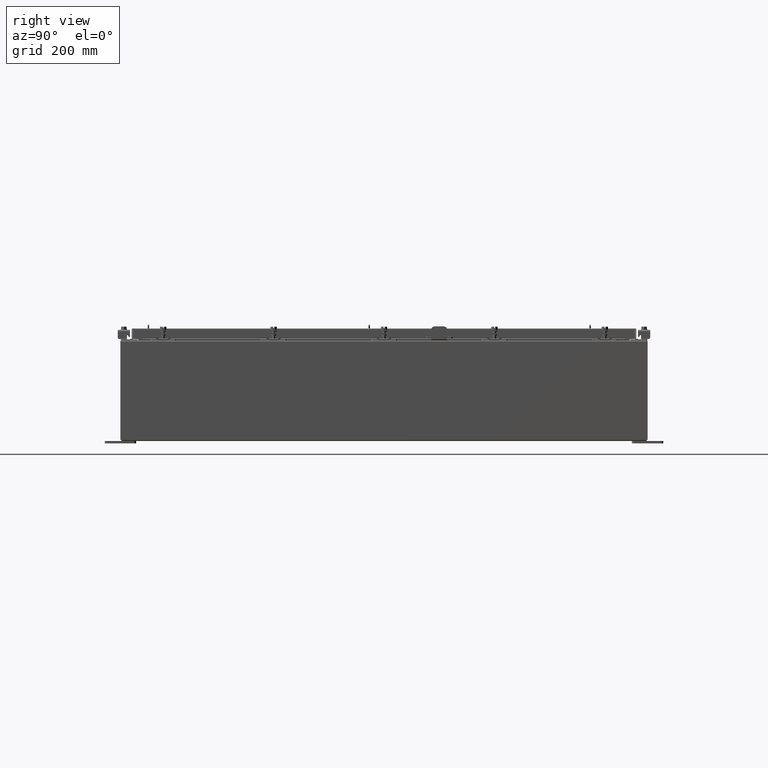
[diagram: clean part render]
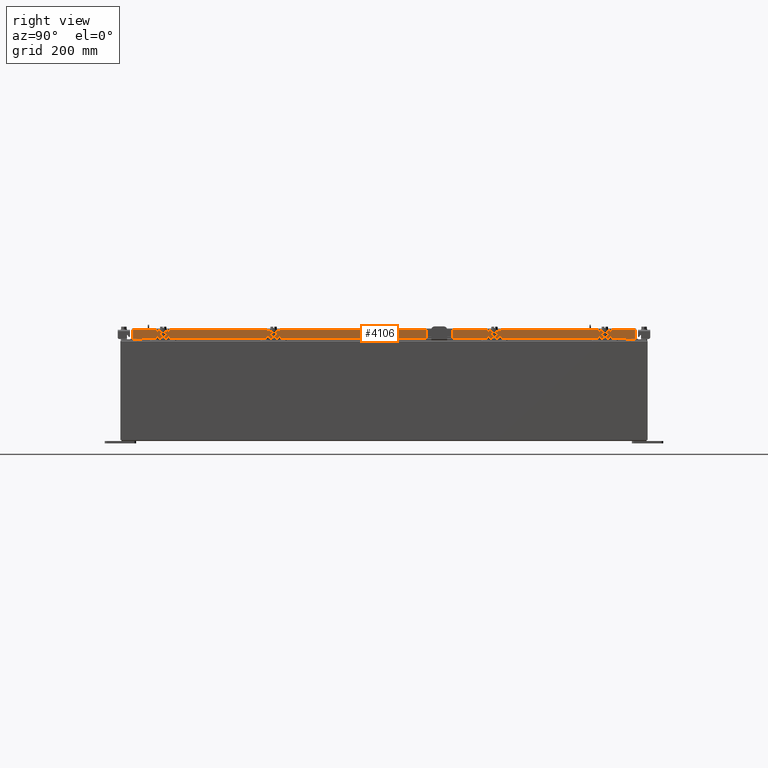
[diagram: same view with one face highlighted and labeled with its STEP entity id]
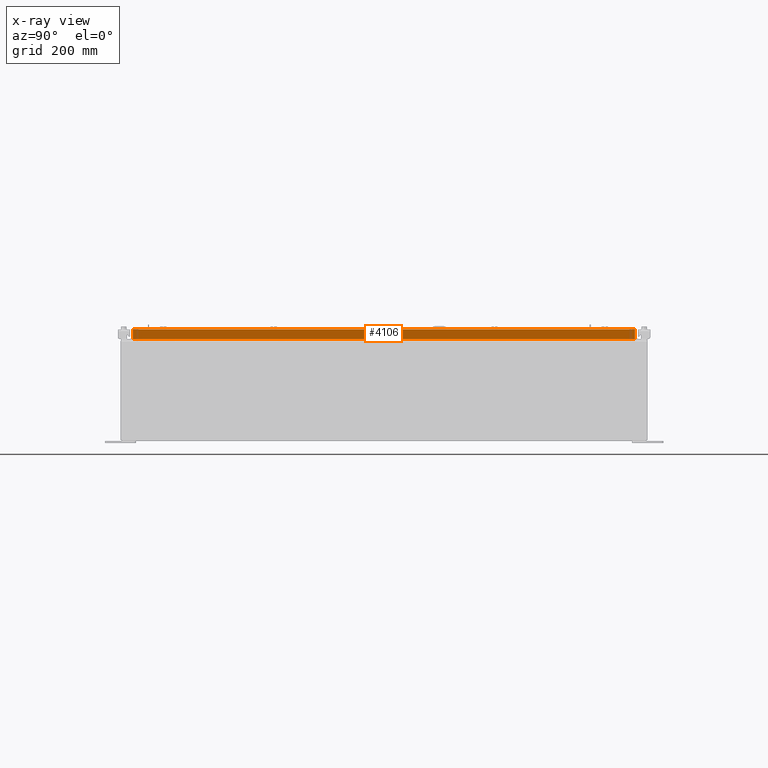
[diagram: x-ray of the same camera — body ghosted, the highlighted face saturated]
A machine part, right view. The second image highlights one B-rep face of the part: STEP entity #4106.
The next image is the same camera in x-ray: the body ghosted, the highlighted face saturated — about 0% of this face is hidden behind the body in this view.
In plain terms, the highlighted planar face has unit normal (1, 0, 0).
Its self-contained STEP definition (entity closure, byte-faithful):
#73 = LINE ( 'NONE', #22333, #14205 ) ;
#450 = ORIENTED_EDGE ( 'NONE', *, *, #2647, .F. ) ;
#595 = VERTEX_POINT ( 'NONE', #22988 ) ;
#890 = CARTESIAN_POINT ( 'NONE',  ( 17.07799999999999200, 19.25515786437627600, -0.8500000000000018700 ) ) ;
#2202 = VERTEX_POINT ( 'NONE', #19032 ) ;
#2203 = CARTESIAN_POINT ( 'NONE',  ( 17.07799999999999900, -20.00515786437626500, -0.08770000000000007000 ) ) ;
#2615 = ORIENTED_EDGE ( 'NONE', *, *, #11727, .F. ) ;
#2647 = EDGE_CURVE ( 'NONE', #12173, #19348, #10587, .T. ) ;
#3266 = CARTESIAN_POINT ( 'NONE',  ( 17.07799999999999900, 20.00515786437626900, -0.08770000000000007000 ) ) ;
#3575 = VECTOR ( 'NONE', #15820, 39.37007874015748100 ) ;
#3851 = DIRECTION ( 'NONE',  ( 2.818880942772360100E-015, 0.0000000000000000000, -1.000000000000000000 ) ) ;
#3869 = DIRECTION ( 'NONE',  ( 0.0000000000000000000, -1.000000000000000000, 0.0000000000000000000 ) ) ;
#3882 = VERTEX_POINT ( 'NONE', #11657 ) ;
#3942 = DIRECTION ( 'NONE',  ( 1.000000000000000000, 0.0000000000000000000, 2.818880942772360100E-015 ) ) ;
#4076 = VECTOR ( 'NONE', #3869, 39.37007874015748100 ) ;
#4106 = ADVANCED_FACE ( 'NONE', ( #21472 ), #4339, .T. ) ;
#4209 = CARTESIAN_POINT ( 'NONE',  ( 17.07799999999999900, 0.0000000000000000000, 4.840166239667794100E-014 ) ) ;
#4339 = PLANE ( 'NONE',  #12541 ) ;
#5055 = DIRECTION ( 'NONE',  ( 0.0000000000000000000, -1.000000000000000000, 0.0000000000000000000 ) ) ;
#6091 = VERTEX_POINT ( 'NONE', #3266 ) ;
#9032 = LINE ( 'NONE', #16516, #4076 ) ;
#10587 = LINE ( 'NONE', #11002, #11245 ) ;
#10870 = LINE ( 'NONE', #890, #15864 ) ;
#11002 = CARTESIAN_POINT ( 'NONE',  ( 17.07799999999999900, -20.00515786437626500, -0.07469999999999978000 ) ) ;
#11245 = VECTOR ( 'NONE', #19655, 39.37007874015748100 ) ;
#11381 = EDGE_LOOP ( 'NONE', ( #450, #22443, #2615, #20717, #23889, #24329 ) ) ;
#11657 = CARTESIAN_POINT ( 'NONE',  ( 17.07799999999999200, -19.25515786437626200, -0.8500000000000018700 ) ) ;
#11727 = EDGE_CURVE ( 'NONE', #595, #3882, #10870, .T. ) ;
#11762 = DIRECTION ( 'NONE',  ( 0.0000000000000000000, -1.000000000000000000, 0.0000000000000000000 ) ) ;
#11965 = EDGE_CURVE ( 'NONE', #2202, #6091, #23758, .T. ) ;
#12173 = VERTEX_POINT ( 'NONE', #17798 ) ;
#12541 = AXIS2_PLACEMENT_3D ( 'NONE', #4209, #3942, #3851 ) ;
#13527 = EDGE_CURVE ( 'NONE', #2202, #595, #25351, .T. ) ;
#14115 = DIRECTION ( 'NONE',  ( -2.818880942772360100E-015, -6.982962677686265900E-015, 1.000000000000000000 ) ) ;
#14205 = VECTOR ( 'NONE', #11762, 39.37007874015748100 ) ;
#15820 = DIRECTION ( 'NONE',  ( 0.0000000000000000000, -1.000000000000000000, 0.0000000000000000000 ) ) ;
#15864 = VECTOR ( 'NONE', #5055, 39.37007874015748100 ) ;
#16516 = CARTESIAN_POINT ( 'NONE',  ( 17.07800000000000300, -20.09399999999999800, -0.8499999999999996400 ) ) ;
#17798 = CARTESIAN_POINT ( 'NONE',  ( 17.07800000000000300, -20.00515786437626200, -0.8499999999999996400 ) ) ;
#19032 = CARTESIAN_POINT ( 'NONE',  ( 17.07800000000000300, 20.00515786437628000, -0.8499999999999996400 ) ) ;
#19348 = VERTEX_POINT ( 'NONE', #2203 ) ;
#19655 = DIRECTION ( 'NONE',  ( -2.818880942772360100E-015, -6.982962677686265900E-015, 1.000000000000000000 ) ) ;
#20717 = ORIENTED_EDGE ( 'NONE', *, *, #13527, .F. ) ;
#21472 = FACE_OUTER_BOUND ( 'NONE', #11381, .T. ) ;
#22333 = CARTESIAN_POINT ( 'NONE',  ( 17.07799999999999900, 0.0000000000000000000, -0.08770000000000007000 ) ) ;
#22443 = ORIENTED_EDGE ( 'NONE', *, *, #24190, .F. ) ;
#22458 = VECTOR ( 'NONE', #14115, 39.37007874015748100 ) ;
#22988 = CARTESIAN_POINT ( 'NONE',  ( 17.07799999999999200, 19.25515786437627200, -0.8500000000000018700 ) ) ;
#23758 = LINE ( 'NONE', #26743, #22458 ) ;
#23889 = ORIENTED_EDGE ( 'NONE', *, *, #11965, .T. ) ;
#24190 = EDGE_CURVE ( 'NONE', #3882, #12173, #9032, .T. ) ;
#24329 = ORIENTED_EDGE ( 'NONE', *, *, #26845, .T. ) ;
#25351 = LINE ( 'NONE', #26298, #3575 ) ;
#26298 = CARTESIAN_POINT ( 'NONE',  ( 17.07800000000000300, -20.09399999999999800, -0.8499999999999996400 ) ) ;
#26743 = CARTESIAN_POINT ( 'NONE',  ( 17.07799999999999900, 20.00515786437626900, 1.880969331248393600E-013 ) ) ;
#26845 = EDGE_CURVE ( 'NONE', #6091, #19348, #73, .T. ) ;